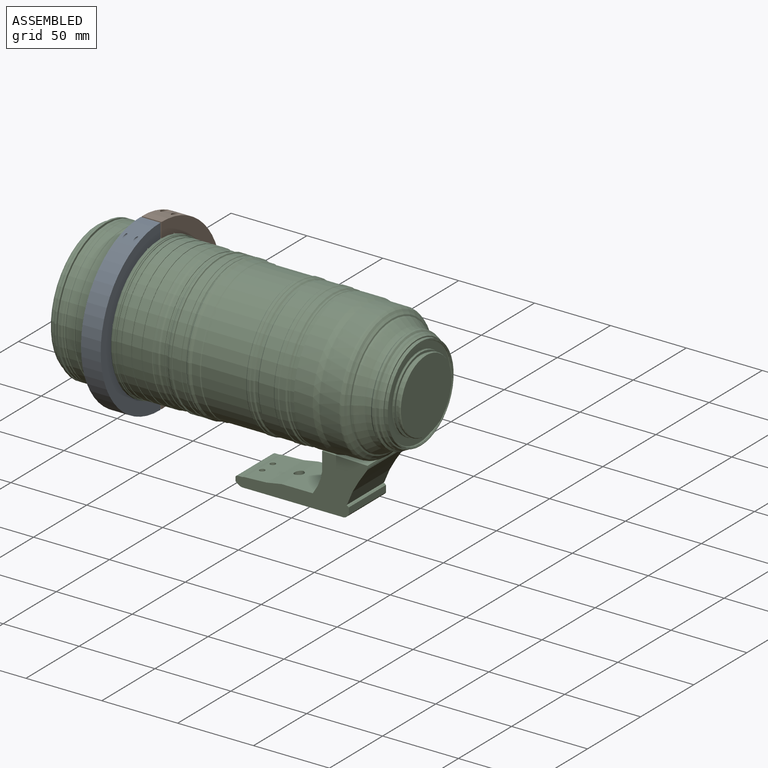
[diagram: assembled view]
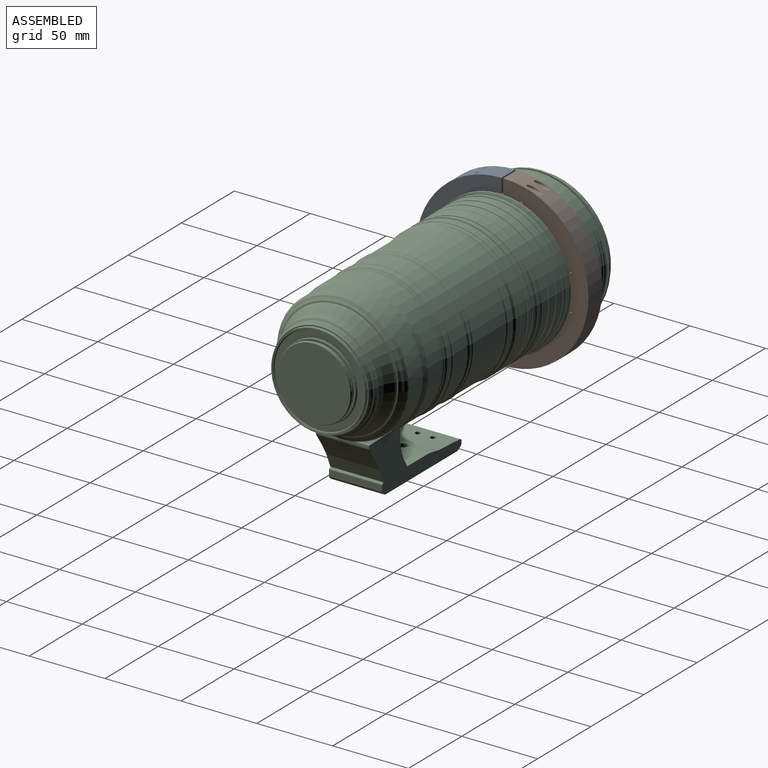
[diagram: assembled view, second angle]
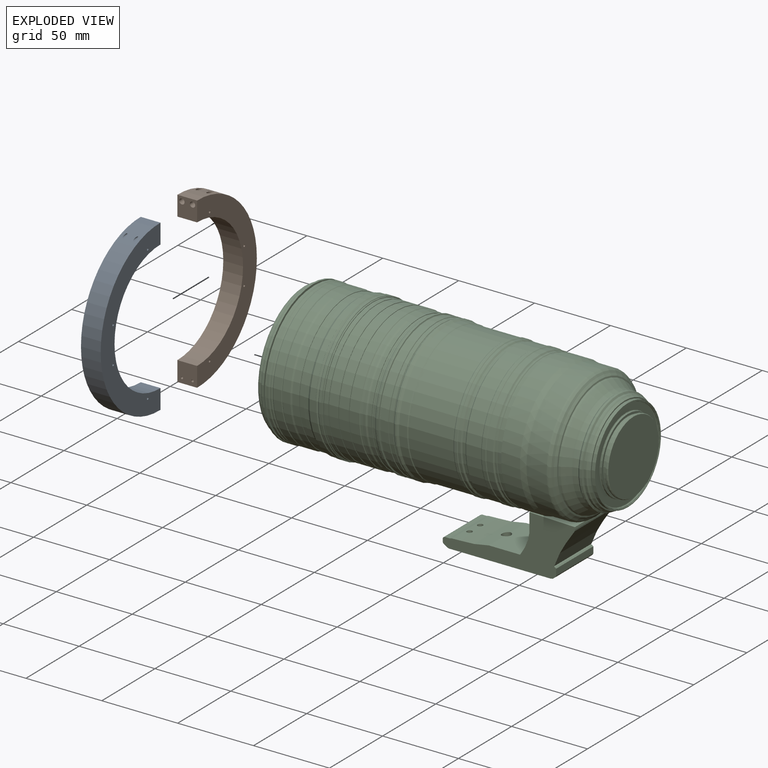
[diagram: exploded view]
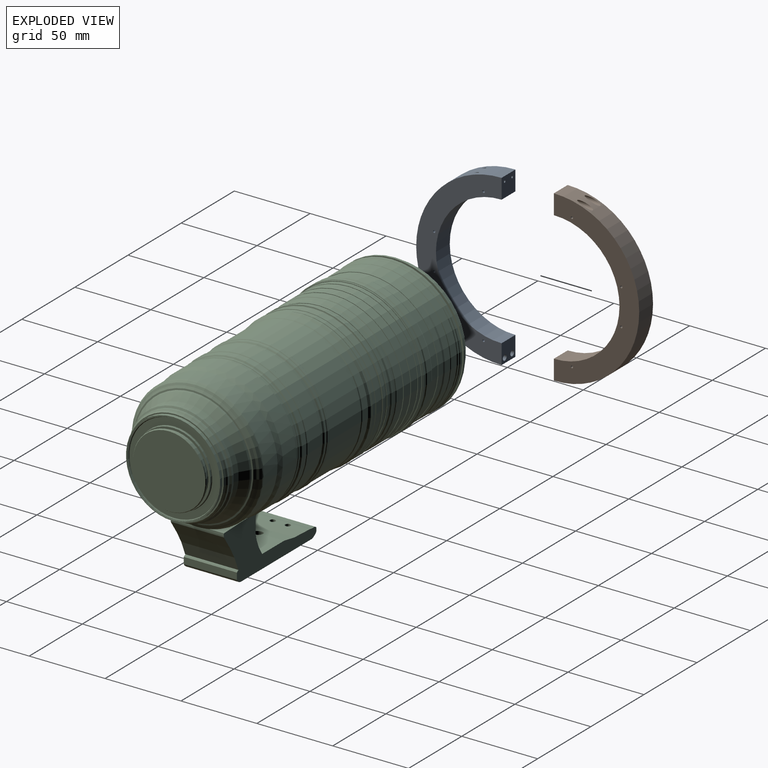
[diagram: exploded view, second angle]
ASSEMBLY  parts=3 mates=2
PART A: 14 faces, bbox 111.5x56.3x13 mm
  f0: cylinder r=55.75mm len=111.5mm, axis (0,0,1), area 2221.8mm2, adj f1,f3,f4,f5,f6,f7,f8,f9
  f1: plane 13x13mm, normal (0,-1,0), area 165.5mm2, adj f0,f2,f4,f5,f6,f7
  f2: cylinder r=42.75mm len=85.5mm, axis (0,0,1), area 1758.9mm2, adj f1,f3,f4,f5
  f3: plane 13x13mm, normal (0,-1,0), area 149.8mm2, adj f0,f2,f4,f5,f8,f9
  f4: plane 111.5x56.25mm, normal (0,0,1), area 2017.3mm2, adj f0,f1,f2,f3,f10,f11,f12,f13
  f5: plane 111.5x56.25mm, normal (0,0,-1), area 2017.3mm2, adj f0,f1,f2,f3,f10,f11,f12,f13
  f6: cylinder r=0.75mm len=21.24mm, axis (0,1,0), area 90.4mm2, adj f0,f1
  f7: cylinder r=0.75mm len=21.24mm, axis (0,1,0), area 90.4mm2, adj f0,f1
  f8: cylinder r=1.75mm len=23.58mm, axis (0,1,0), area 207.5mm2, adj f0,f3
  f9: cylinder r=1.75mm len=23.58mm, axis (0,1,0), area 207.5mm2, adj f0,f3
  f10: cylinder r=0.75mm len=13mm, axis (0,0,1), area 61.3mm2, adj f4,f5
  f11: cylinder r=0.75mm len=13mm, axis (0,0,1), area 61.3mm2, adj f4,f5
  f12: cylinder r=0.75mm len=13mm, axis (0,0,1), area 61.3mm2, adj f4,f5
  f13: cylinder r=0.75mm len=13mm, axis (0,0,1), area 61.3mm2, adj f4,f5
PART B: same geometry as A
PART C: 189 faces, bbox 217.6x93.7x124.4 mm
  f0: plane 47.71x47.71mm, normal (1,0,0), area 1788.1mm2, adj f1
  f1: cone r=24.23mm half-angle=35.1deg, axis (-1,0,0), area 99mm2, adj f0,f2
  f2: cylinder r=24.23mm len=48.47mm, axis (-1,0,0), area 119.6mm2, adj f1,f3
  f3: plane 48.47x48.47mm, normal (-1,0,0), area 150.8mm2, adj f2,f4
  f4: cone r=22.89mm half-angle=44.6deg, axis (1,0,0), area 69.5mm2, adj f3,f5
  f5: cone r=22.95mm half-angle=2.2deg, axis (-1,0,0), area 252mm2, adj f4,f6
  f6: cone r=23.12mm half-angle=34.1deg, axis (-1,0,0), area 43.6mm2, adj f5,f7
  f7: plane 49.18x49.18mm, normal (1,0,0), area 219.8mm2, adj f6,f8
  f8: cylinder r=24.59mm len=49.18mm, axis (-1,0,0), area 160.1mm2, adj f7,f9
  f9: cone r=24.92mm half-angle=57.1deg, axis (-1,0,0), area 61.9mm2, adj f8,f10
  f10: plane 59.21x59.21mm, normal (1,0,0), area 802.5mm2, adj f9,f11
  f11: cone r=30.03mm half-angle=63.1deg, axis (1,0,0), area 89.4mm2, adj f10,f12
  f12: cylinder r=30.03mm len=60.07mm, axis (-1,0,0), area 113.8mm2, adj f11,f13
  f13: cone r=30.43mm half-angle=86.5deg, axis (-1,0,0), area 74.9mm2, adj f12,f14
  f14: cone r=30.44mm half-angle=1.5deg, axis (1,0,0), area 87.3mm2, adj f13,f15
  f15: plane 62.05x62.05mm, normal (1,0,0), area 113.3mm2, adj f14,f16
  f16: cylinder r=31.02mm len=62.05mm, axis (-1,0,0), area 436.7mm2, adj f15,f17
  f17: plane 63.65x63.65mm, normal (1,0,0), area 157.8mm2, adj f16,f18
  f18: cone r=32.35mm half-angle=19.5deg, axis (-1,0,0), area 316.2mm2, adj f17,f19
  f19: cone r=32.97mm half-angle=40.9deg, axis (-1,0,0), area 194.2mm2, adj f18,f20
  f20: cylinder r=32.97mm len=65.94mm, axis (-1,0,0), area 335.8mm2, adj f19,f21
  f21: cone r=34.11mm half-angle=59.7deg, axis (-1,0,0), area 279.2mm2, adj f20,f22
  f22: cone r=34.26mm half-angle=5.7deg, axis (-1,0,0), area 308.8mm2, adj f21,f23
  f23: cone r=33.4mm half-angle=38deg, axis (1,0,0), area 296mm2, adj f22,f24
  f24: cone r=34.43mm half-angle=17.6deg, axis (-1,0,0), area 728.7mm2, adj f23,f25
  f25: cone r=37.58mm half-angle=36.6deg, axis (-1,0,0), area 1195.2mm2, adj f24,f26
  f26: cone r=38.23mm half-angle=35.8deg, axis (-1,0,0), area 266.1mm2, adj f25,f27
  f27: cone r=38.23mm half-angle=16.3deg, axis (-1,0,0), area 297.6mm2, adj f26,f28
  f28: cone r=38.58mm half-angle=77deg, axis (-1,0,0), area 246mm2, adj f27,f29
  f29: cone r=39.55mm half-angle=47.2deg, axis (-1,0,0), area 435.2mm2, adj f28,f30
  f30: cone r=40.82mm half-angle=57.1deg, axis (-1,0,0), area 396.3mm2, adj f29,f31
  f31: cone r=42.1mm half-angle=32.3deg, axis (-1,0,0), area 441.1mm2, adj f30,f32
  f32: cone r=42.98mm half-angle=18.4deg, axis (-1,0,0), area 225.4mm2, adj f31,f33,f142,f143,f146
  f33: cylinder r=43.25mm len=86.51mm, axis (-1,0,0), area 3341.9mm2, adj f32,f34,f142,f143
  f34: cone r=43.25mm half-angle=14.5deg, axis (-1,0,0), area 940.7mm2, adj f33,f35,f142,f143
  f35: cylinder r=44.2mm len=88.4mm, axis (-1,0,0), area 3070.8mm2, adj f34,f36,f142,f143
  f36: plane 88.4x85.62mm, normal (-1,0,0), area 195.7mm2, adj f35,f37,f142,f143
  f37: cone r=43.41mm half-angle=27.6deg, axis (1,0,0), area 87.7mm2, adj f36,f38,f142,f143,f147
  f38: cylinder r=43.25mm len=86.51mm, axis (-1,0,0), area 794.7mm2, adj f37,f39
  f39: cone r=43.25mm half-angle=54.6deg, axis (-1,0,0), area 103.1mm2, adj f38,f40
  f40: cylinder r=43.56mm len=87.12mm, axis (-1,0,0), area 367.1mm2, adj f39,f41
  f41: cone r=43.56mm half-angle=51.5deg, axis (-1,0,0), area 281.2mm2, adj f40,f42
  f42: cylinder r=44.36mm len=88.72mm, axis (-1,0,0), area 1193.5mm2, adj f41,f43
  f43: cone r=44.36mm half-angle=47.2deg, axis (-1,0,0), area 139.4mm2, adj f42,f44
  f44: cylinder r=44.72mm len=89.45mm, axis (-1,0,0), area 709.7mm2, adj f43,f45
  f45: cone r=44.72mm half-angle=38.5deg, axis (1,0,0), area 164.4mm2, adj f44,f46
  f46: cylinder r=44.36mm len=88.72mm, axis (-1,0,0), area 2801.6mm2, adj f45,f47
  f47: cone r=44.36mm half-angle=42.8deg, axis (1,0,0), area 283.3mm2, adj f46,f48
  f48: cylinder r=43.66mm len=87.33mm, axis (-1,0,0), area 560.5mm2, adj f47,f49
  f49: cone r=43.66mm half-angle=47.9deg, axis (-1,0,0), area 295.5mm2, adj f48,f50
  f50: cylinder r=44.45mm len=88.91mm, axis (-1,0,0), area 519.1mm2, adj f49,f51
  f51: cone r=44.45mm half-angle=47.6deg, axis (-1,0,0), area 154.3mm2, adj f50,f52
  f52: cone r=44.86mm half-angle=2.5deg, axis (-1,0,0), area 499.8mm2, adj f51,f53
  f53: cone r=44.94mm half-angle=36.4deg, axis (1,0,0), area 179.6mm2, adj f52,f54
  f54: cylinder r=44.56mm len=89.11mm, axis (-1,0,0), area 8354.5mm2, adj f53,f55
  f55: cone r=44.56mm half-angle=38.8deg, axis (-1,0,0), area 170.3mm2, adj f54,f56
  f56: cylinder r=44.94mm len=89.87mm, axis (-1,0,0), area 1518.4mm2, adj f55,f57
  f57: cone r=44.94mm half-angle=31.9deg, axis (-1,0,0), area 461.9mm2, adj f56,f58
  f58: cylinder r=45.79mm len=91.59mm, axis (-1,0,0), area 322.2mm2, adj f57,f59
  f59: cone r=45.79mm half-angle=46.2deg, axis (1,0,0), area 338.4mm2, adj f58,f60
  f60: cylinder r=44.94mm len=89.87mm, axis (-1,0,0), area 97.6mm2, adj f59,f61
  f61: cone r=44.94mm half-angle=70.8deg, axis (-1,0,0), area 101.7mm2, adj f60,f62
  f62: cylinder r=45.27mm len=90.55mm, axis (-1,0,0), area 772.9mm2, adj f61,f63
  f63: cone r=45.27mm half-angle=70.5deg, axis (-1,0,0), area 111.9mm2, adj f62,f64
  f64: cylinder r=45.64mm len=91.29mm, axis (-1,0,0), area 653mm2, adj f63,f65
  f65: cone r=45.64mm half-angle=64.2deg, axis (1,0,0), area 117.2mm2, adj f64,f66
  f66: cylinder r=45.27mm len=90.55mm, axis (-1,0,0), area 816.1mm2, adj f65,f67
  f67: plane 90.55x90.55mm, normal (-1,0,0), area 86.4mm2, adj f66,f68
  f68: cone r=44.97mm half-angle=20.2deg, axis (1,0,0), area 96.3mm2, adj f67,f69
  f69: cone r=44.85mm half-angle=8.8deg, axis (-1,0,0), area 170.9mm2, adj f68,f70
  f70: cone r=44.94mm half-angle=67.8deg, axis (-1,0,0), area 101mm2, adj f69,f71
  f71: cone r=45.27mm half-angle=75.7deg, axis (-1,0,0), area 136.5mm2, adj f70,f72
  f72: cylinder r=45.74mm len=91.47mm, axis (-1,0,0), area 327.8mm2, adj f71,f73
  f73: cone r=45.74mm half-angle=36deg, axis (1,0,0), area 88.8mm2, adj f72,f74
  f74: cylinder r=45.56mm len=91.11mm, axis (-1,0,0), area 136.5mm2, adj f73,f75
  f75: cone r=45.56mm half-angle=32.1deg, axis (1,0,0), area 236.5mm2, adj f74,f76
  f76: plane 90.23x90.23mm, normal (-1,0,0), area 57.3mm2, adj f75,f77
  f77: cylinder r=44.91mm len=89.82mm, axis (-1,0,0), area 238.8mm2, adj f76,f78
  f78: cone r=44.91mm half-angle=68.6deg, axis (1,0,0), area 100.8mm2, adj f77,f79
  f79: cone r=44.58mm half-angle=26.1deg, axis (1,0,0), area 84.9mm2, adj f78,f80
  f80: cylinder r=44.44mm len=88.89mm, axis (-1,0,0), area 272.9mm2, adj f79,f81
  f81: cone r=44.44mm half-angle=21.4deg, axis (-1,0,0), area 71mm2, adj f80,f82
  f82: plane 89.72x89.72mm, normal (1,0,0), area 90.7mm2, adj f81,f83
  f83: cylinder r=44.86mm len=89.72mm, axis (-1,0,0), area 733mm2, adj f82,f84
  f84: cone r=44.86mm half-angle=21.4deg, axis (-1,0,0), area 321.2mm2, adj f83,f85
  f85: cylinder r=45.27mm len=90.55mm, axis (-1,0,0), area 575.5mm2, adj f84,f86
  f86: cone r=45.27mm half-angle=4.9deg, axis (-1,0,0), area 421.3mm2, adj f85,f87
  f87: cone r=45.4mm half-angle=51.8deg, axis (-1,0,0), area 120.6mm2, adj f86,f88
  f88: cylinder r=45.73mm len=91.46mm, axis (-1,0,0), area 1725mm2, adj f87,f89
  f89: plane 91.46x91.46mm, normal (-1,0,0), area 94.7mm2, adj f88,f90
  f90: cylinder r=45.4mm len=90.8mm, axis (-1,0,0), area 241.4mm2, adj f89,f91
  f91: plane 91.46x91.46mm, normal (1,0,0), area 94.7mm2, adj f90,f92
  f92: cylinder r=45.73mm len=91.46mm, axis (-1,0,0), area 1695.9mm2, adj f91,f93
  f93: plane 91.46x91.46mm, normal (-1,0,0), area 94.7mm2, adj f92,f94
  f94: cylinder r=45.4mm len=90.8mm, axis (-1,0,0), area 275mm2, adj f93,f95
  f95: plane 91.46x91.46mm, normal (1,0,0), area 94.7mm2, adj f94,f96
  f96: cylinder r=45.73mm len=91.46mm, axis (-1,0,0), area 1684.3mm2, adj f95,f97
  f97: plane 91.46x91.46mm, normal (-1,0,0), area 94.7mm2, adj f96,f98
  f98: cylinder r=45.4mm len=90.8mm, axis (-1,0,0), area 226.5mm2, adj f97,f99
  f99: plane 91.46x91.46mm, normal (1,0,0), area 94.7mm2, adj f98,f100
  f100: cylinder r=45.73mm len=91.46mm, axis (-1,0,0), area 875.5mm2, adj f99,f101
  f101: plane 92.25x92.25mm, normal (1,0,0), area 113.5mm2, adj f100,f102
  f102: cylinder r=46.12mm len=92.25mm, axis (-1,0,0), area 246.9mm2, adj f101,f103
  f103: cone r=46.12mm half-angle=72.8deg, axis (-1,0,0), area 128.3mm2, adj f102,f104
  f104: cylinder r=46.55mm len=93.09mm, axis (-1,0,0), area 551.2mm2, adj f103,f105
  f105: cone r=46.55mm half-angle=40.6deg, axis (1,0,0), area 196.8mm2, adj f104,f106
  f106: cylinder r=46.11mm len=92.21mm, axis (-1,0,0), area 92.9mm2, adj f105,f107
  f107: cone r=46.11mm half-angle=40.2deg, axis (-1,0,0), area 198.6mm2, adj f106,f108
  f108: cylinder r=46.55mm len=93.09mm, axis (-1,0,0), area 228.7mm2, adj f107,f109
  f109: cone r=46.55mm half-angle=52.4deg, axis (1,0,0), area 95.7mm2, adj f108,f110
  f110: cylinder r=46.29mm len=92.57mm, axis (-1,0,0), area 1113.6mm2, adj f109,f111
  f111: cone r=46.29mm half-angle=31.8deg, axis (1,0,0), area 482.2mm2, adj f110,f112
  f112: cylinder r=45.4mm len=90.8mm, axis (-1,0,0), area 885.7mm2, adj f111,f113
  f113: plane 90.8x90.8mm, normal (-1,0,0), area 85.8mm2, adj f112,f114
  f114: cylinder r=45.1mm len=90.2mm, axis (-1,0,0), area 803.8mm2, adj f113,f115
  f115: plane 90.8x90.8mm, normal (1,0,0), area 85.8mm2, adj f114,f116
  f116: cylinder r=45.4mm len=90.8mm, axis (-1,0,0), area 1326.5mm2, adj f115,f117
  f117: cone r=45.4mm half-angle=17.2deg, axis (-1,0,0), area 324.5mm2, adj f116,f118
  f118: cylinder r=45.74mm len=91.48mm, axis (-1,0,0), area 1475mm2, adj f117,f119
  f119: cone r=45.74mm half-angle=41.3deg, axis (1,0,0), area 145.3mm2, adj f118,f120
  f120: cone r=45.4mm half-angle=48.7deg, axis (-1,0,0), area 127.8mm2, adj f119,f121
  f121: cylinder r=45.74mm len=91.48mm, axis (-1,0,0), area 1562mm2, adj f120,f122
  f122: cone r=45.74mm half-angle=33.5deg, axis (1,0,0), area 173.7mm2, adj f121,f123
  f123: cone r=45.4mm half-angle=31.8deg, axis (-1,0,0), area 181.8mm2, adj f122,f124
  f124: cylinder r=45.74mm len=91.48mm, axis (-1,0,0), area 363.3mm2, adj f123,f125
  f125: cone r=45.74mm half-angle=38.9deg, axis (-1,0,0), area 168.8mm2, adj f124,f126
  f126: cylinder r=46.11mm len=92.21mm, axis (-1,0,0), area 507.9mm2, adj f125,f127
  f127: plane 92.21x92.21mm, normal (-1,0,0), area 352.8mm2, adj f126,f128
  f128: cone r=44.87mm half-angle=54.2deg, axis (1,0,0), area 145.7mm2, adj f127,f129
  f129: cylinder r=44.45mm len=88.9mm, axis (-1,0,0), area 235.4mm2, adj f128,f130
  f130: cone r=44.45mm half-angle=35.5deg, axis (-1,0,0), area 121.9mm2, adj f129,f131
  f131: plane 92.21x92.21mm, normal (1,0,0), area 400.2mm2, adj f130,f132
  f132: cylinder r=46.11mm len=92.21mm, axis (-1,0,0), area 405.4mm2, adj f131,f133
  f133: cone r=46.11mm half-angle=42.3deg, axis (1,0,0), area 157.8mm2, adj f132,f134
  f134: plane 91.48x91.48mm, normal (-1,0,0), area 327.2mm2, adj f133,f135
  f135: cone r=44.58mm half-angle=56.3deg, axis (1,0,0), area 84.9mm2, adj f134,f136
  f136: cone r=44.33mm half-angle=22.8deg, axis (1,0,0), area 181.8mm2, adj f135,f137
  f137: cylinder r=44.08mm len=88.16mm, axis (-1,0,0), area 538.1mm2, adj f136,f138
  f138: cone r=44.08mm half-angle=22.9deg, axis (1,0,0), area 107.5mm2, adj f137,f139
  f139: cone r=43.93mm half-angle=33.7deg, axis (1,0,0), area 153.7mm2, adj f138,f140
  f140: cone r=43.62mm half-angle=62.3deg, axis (1,0,0), area 146.8mm2, adj f139,f141
  f141: plane 86.28x86.28mm, normal (-1,0,0), area 5846.5mm2, adj f140
  f142: plane 30.51x10.18mm, normal (0.03,0,1), area 157.2mm2, adj f32,f33,f34,f35,f36,f37,f146,f147
  f143: plane 30.51x10.18mm, normal (0.03,0,1), area 157.2mm2, adj f32,f33,f34,f35,f36,f37,f146,f147
  f144: plane 35x0.61mm, normal (1,0,0), area 21.5mm2, adj f145,f179,f180,f181
  f145: plane 35x0.15mm, normal (0,0,-1), area 5.2mm2, adj f144,f146,f180,f181
  f146: plane 35.17x1.51mm, normal (0.99,0,0.11), area 39.8mm2, adj f32,f142,f143,f145,f180,f181
  f147: plane 35x12.26mm, normal (-1,0,0), area 395.3mm2, adj f37,f142,f143,f148,f180,f181
  f148: plane 35x4.16mm, normal (-0.98,0,0.21), area 148.7mm2, adj f147,f149,f180,f181
  f149: plane 35x5.22mm, normal (-0.93,0,0.36), area 195.7mm2, adj f148,f150,f180,f181
  f150: plane 35x5.3mm, normal (-0.85,0,0.52), area 217.3mm2, adj f149,f151,f180,f181
  f151: plane 35x20.59mm, normal (0,0,1), area 710.2mm2, adj f150,f152,f180,f181,f188
  f152: plane 35.26x9.98mm, normal (-0.17,0,0.98), area 326.4mm2, adj f151,f153,f180,f181,f188
  f153: plane 35x8.91mm, normal (-0.05,0,1), area 312.3mm2, adj f152,f154,f180,f181
  f154: plane 35x5.72mm, normal (-0.03,0,1), area 181mm2, adj f153,f155,f180,f181,f182,f183
  f155: plane 35x1.7mm, normal (-0.2,0,0.98), area 60.9mm2, adj f154,f156,f180,f181
  f156: plane 35x2.98mm, normal (0,0,1), area 104.4mm2, adj f155,f157,f180,f181
  f157: plane 35x1.08mm, normal (-0.48,0,0.88), area 43mm2, adj f156,f158,f180,f181
  f158: plane 35x0.47mm, normal (-0.87,0,0.5), area 19mm2, adj f157,f159,f180,f181
  f159: plane 35x2.14mm, normal (-1,0,0), area 74.9mm2, adj f158,f160,f180,f181
  f160: plane 35x0.64mm, normal (-0.95,0,-0.3), area 23.5mm2, adj f159,f161,f180,f181
  f161: plane 35x0.56mm, normal (-0.72,0,-0.7), area 27.1mm2, adj f160,f162,f180,f181
  f162: plane 35x2.16mm, normal (-0.54,0,-0.84), area 89.7mm2, adj f161,f163,f180,f181
  f163: plane 35x1.24mm, normal (-0.31,0,-0.95), area 45.4mm2, adj f162,f164,f180,f181
  f164: plane 67.03x35.01mm, normal (0,0,-1), area 2223.1mm2, adj f163,f165,f180,f181,f184,f185,f187,f188
  f165: plane 35x1.38mm, normal (0.24,0,-0.97), area 49.9mm2, adj f164,f166,f180,f181
  f166: plane 35x1.51mm, normal (0.62,0,-0.79), area 67.2mm2, adj f165,f167,f180,f181
  f167: plane 35x0.76mm, normal (0.81,0,-0.59), area 32.9mm2, adj f166,f168,f180,f181
  f168: plane 35x0.34mm, normal (0.95,0,-0.31), area 12.5mm2, adj f167,f169,f180,f181
  f169: plane 35x4.21mm, normal (1,0,0), area 147.5mm2, adj f168,f170,f180,f181
  f170: plane 35x0.24mm, normal (0.64,0,0.77), area 11.1mm2, adj f169,f171,f180,f181
  f171: plane 35x0.51mm, normal (0.64,0,0.77), area 23mm2, adj f170,f172,f180,f181
  f172: plane 35x0.63mm, normal (0.4,0,0.92), area 24.2mm2, adj f171,f173,f180,f181
  f173: plane 35x0.17mm, normal (0.31,0,0.95), area 6.4mm2, adj f172,f174,f180,f181
  f174: plane 35x0.13mm, normal (0.95,0,-0.31), area 4.6mm2, adj f173,f175,f180,f181
  f175: plane 35x0.28mm, normal (0.52,0,-0.85), area 11.7mm2, adj f174,f176,f180,f181
  f176: plane 35x8.62mm, normal (0.92,0,-0.39), area 327.4mm2, adj f175,f177,f180,f181
  f177: plane 35x6.93mm, normal (0.87,0,-0.5), area 279.6mm2, adj f176,f178,f180,f181
  f178: plane 35x8.77mm, normal (0.83,0,-0.56), area 369.5mm2, adj f177,f179,f180,f181
  f179: plane 35x0.51mm, normal (0.99,0,-0.11), area 18mm2, adj f144,f178,f180,f181
  f180: plane 87.18x35.82mm, normal (0,-1,0), area 1255.9mm2, adj f143,f144,f145,f146,f147,f148,f149,f150
  f181: plane 87.18x35.82mm, normal (0,1,0), area 1255.9mm2, adj f142,f144,f145,f146,f147,f148,f149,f150
  f182: cylinder r=1.75mm len=5.42mm, axis (-0.03,0,1), area 57.1mm2, adj f154,f185
  f183: cylinder r=1.75mm len=5.42mm, axis (-0.03,0,1), area 57.1mm2, adj f154,f184
  f184: bspline ~6.4x6.4mm, area 31.8mm2, adj f164,f183
  f185: bspline ~6.4x6.4mm, area 31.8mm2, adj f164,f182
  f186: cone r=0mm half-angle=59deg, axis (0,0,-1), area 34.1mm2, adj f187
  f187: cylinder r=3.05mm len=10mm, axis (0,0,-1), area 191.6mm2, adj f164,f186
  f188: cylinder r=3.05mm len=8.89mm, axis (0,0,-1), area 166.8mm2, adj f151,f152,f164
PLACE A rot(axis=(0.71,0,-0.71),180deg) t=(-55.52,27.32,47.22)mm
PLACE B rot(axis=(0,-1,0),90deg) t=(-55.52,28.32,47.22)mm
PLACE C t=(11.43,26.82,33.84)mm
MATE fastened A.f2 <-> C.f1  axis (-1,0,0) through (-68.52,26.82,47.22)mm
MATE fastened A.f8 <-> B.f7  axis (0,1,0) through (-65.52,27.32,-5.28)mm
